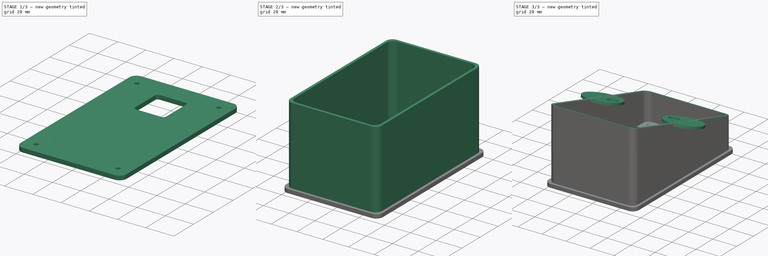
[diagram: build sequence overview — one tinted view per stage of 3, left to right]
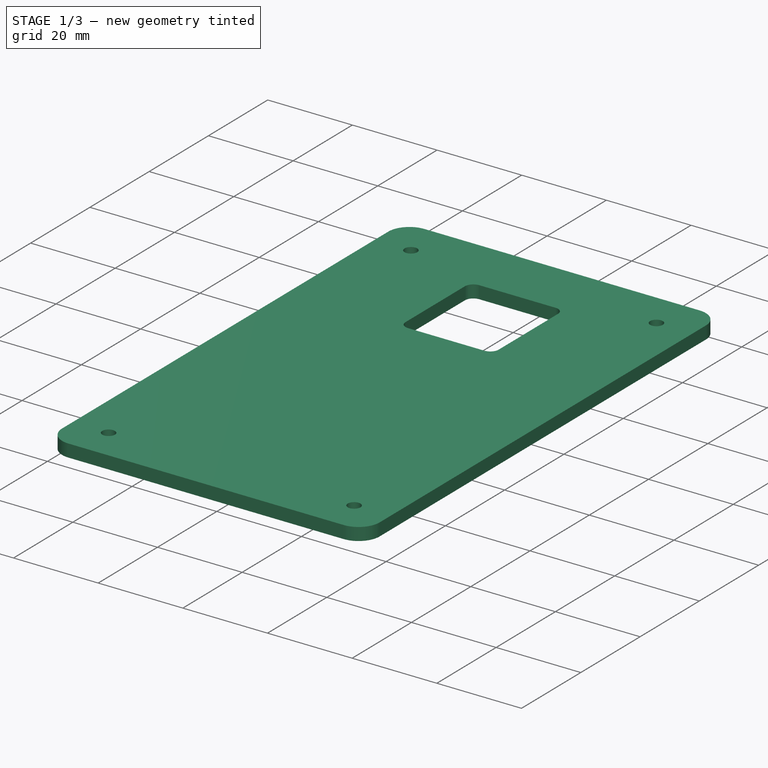
[diagram: stage 1 of 3 — iso view after this stage's code; geometry added in this stage tinted green]
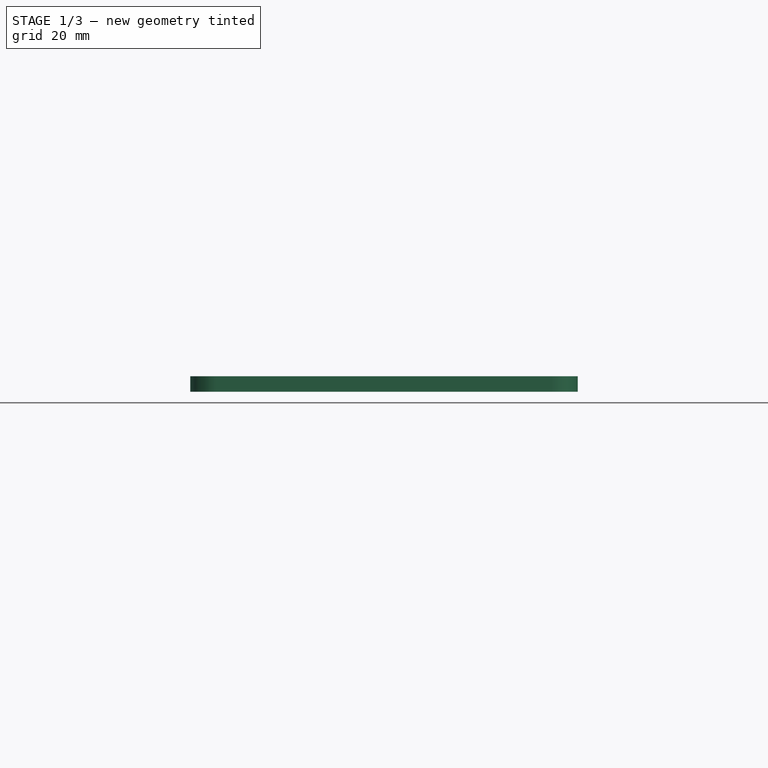
[diagram: stage 1 of 3 — front view after this stage's code; geometry added in this stage tinted green]
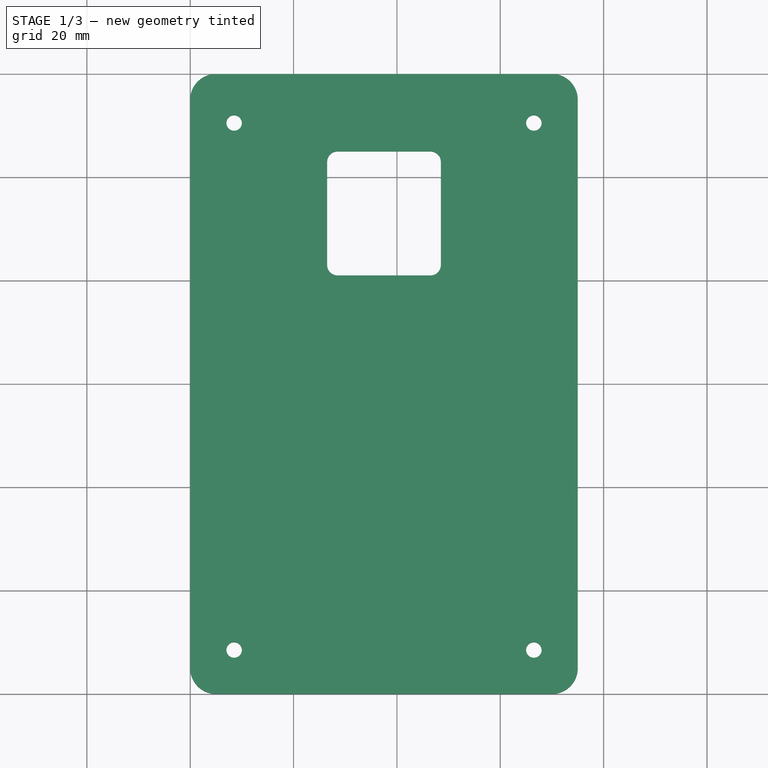
[diagram: stage 1 of 3 — top view after this stage's code; geometry added in this stage tinted green]
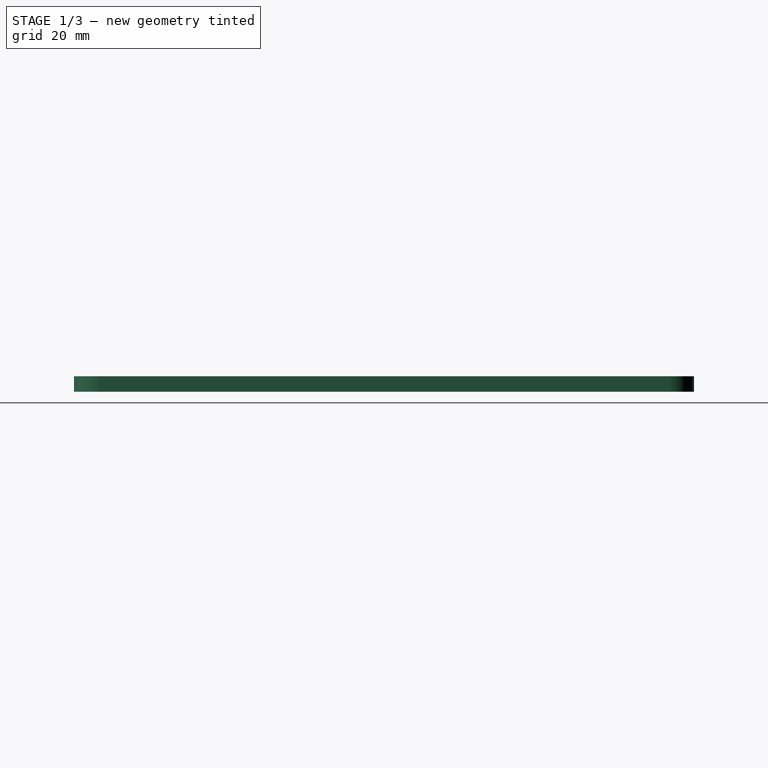
[diagram: stage 1 of 3 — right view after this stage's code; geometry added in this stage tinted green]
FCSTD DOCUMENT  (FreeCAD 0.16R6703 (Git))
Label: terminal1
License: All rights reserved
LicenseURL: http://en.wikipedia.org/wiki/All_rights_reserved
objects: Sketcher::SketchObject×8, PartDesign::Pocket×4, PartDesign::Pad×3
note: 22 computed .brp shape members not serialized (recipe doc carries the construction recipe); baked Part::Feature solids carry a one-line shape summary decoded from their .brp

FEATURE [Sketcher::SketchObject] Sketch
  sketch-geometry (17):
    g0: LineSegment StartX=5 StartY=0 StartZ=0 EndX=70 EndY=0 EndZ=0
    g1: LineSegment StartX=75 StartY=5 StartZ=0 EndX=75 EndY=115 EndZ=0
    g2: LineSegment StartX=70 StartY=120 StartZ=0 EndX=5 EndY=120 EndZ=0
    g3: LineSegment StartX=0 StartY=115 StartZ=0 EndX=0 EndY=5 EndZ=0
    g4: ArcOfCircle CenterX=5 CenterY=115 CenterZ=0 NormalX=0 NormalY=0 NormalZ=1 Radius=5 StartAngle=1.5708 EndAngle=3.14159
    g5: ArcOfCircle CenterX=70 CenterY=115 CenterZ=0 NormalX=0 NormalY=0 NormalZ=1 Radius=5 StartAngle=0 EndAngle=1.5708
    g6: ArcOfCircle CenterX=70 CenterY=5 CenterZ=0 NormalX=0 NormalY=0 NormalZ=1 Radius=5 StartAngle=4.71239 EndAngle=6.28319
    g7: ArcOfCircle CenterX=5 CenterY=5 CenterZ=0 NormalX=0 NormalY=0 NormalZ=1 Radius=5 StartAngle=3.14159 EndAngle=4.71239
    g8: LineSegment StartX=28.5 StartY=105 StartZ=0 EndX=46.5 EndY=105 EndZ=0
    g9: LineSegment StartX=48.5 StartY=103 StartZ=0 EndX=48.5 EndY=83 EndZ=0
    g10: LineSegment StartX=46.5 StartY=81 StartZ=0 EndX=28.5 EndY=81 EndZ=0
    g11: LineSegment StartX=26.5 StartY=83 StartZ=0 EndX=26.5 EndY=103 EndZ=0
    g12: LineSegment [constr] StartX=37.5 StartY=105 StartZ=0 EndX=37.5 EndY=81 EndZ=0
    g13: ArcOfCircle CenterX=28.5 CenterY=103 CenterZ=0 NormalX=0 NormalY=0 NormalZ=1 Radius=2 StartAngle=1.5708 EndAngle=3.14159
    g14: ArcOfCircle CenterX=46.5 CenterY=103 CenterZ=0 NormalX=0 NormalY=0 NormalZ=1 Radius=2 StartAngle=0 EndAngle=1.5708
    g15: ArcOfCircle CenterX=28.5 CenterY=83 CenterZ=0 NormalX=0 NormalY=0 NormalZ=1 Radius=2 StartAngle=3.14159 EndAngle=4.71239
    g16: ArcOfCircle CenterX=46.5 CenterY=83 CenterZ=0 NormalX=0 NormalY=0 NormalZ=1 Radius=2 StartAngle=4.71239 EndAngle=6.28319
  constraints (43):
    c: Horizontal(g0)
    c: Horizontal(g2)
    c: Vertical(g1)
    c: Vertical(g3)
    c: Tangent(g2,g4) = -1.5708
    c: Tangent(g3,g4) = -1.5708
    c: Tangent(g2,g5) = -1.5708
    c: Tangent(g1,g5) = -1.5708
    c: Tangent(g1,g6) = -1.5708
    c: Tangent(g0,g6) = -1.5708
    c: Tangent(g3,g7) = -1.5708
    c: Tangent(g0,g7) = -1.5708
    c: Equal(g7,g4)
    c: Equal(g4,g5)
    c: Equal(g5,g6)
    c: PointOnObject(g3,g-2)
    c: PointOnObject(g0,g-1)
    c: DistanceY(g0,g2) = 120
    c: DistanceX(g3,g1) = 75
    c: Radius(g7) = 5
    c: Horizontal(g8)
    c: Horizontal(g10)
    c: Vertical(g9)
    c: Vertical(g11)
    c: PointOnObject(g12,g8)
    c: PointOnObject(g12,g10)
    c: Tangent(g8,g13) = 1.5708
    c: Tangent(g11,g13) = 1.5708
    c: Tangent(g8,g14) = 1.5708
    c: Tangent(g9,g14) = 1.5708
    c: Tangent(g11,g15) = 1.5708
    c: Tangent(g10,g15) = 1.5708
    c: Tangent(g10,g16) = 1.5708
    c: Tangent(g9,g16) = 1.5708
    c: Equal(g15,g13)
    c: Equal(g13,g14)
    c: Equal(g14,g16)
    c: Radius(g15) = 2
    c: DistanceX(g11,g9) = 22
    c: DistanceY(g10,g8) = 24
    c: Symmetric(g8,g8,g12)
    c: Symmetric(g2,g2,g12)
    c: DistanceY(g12,g2) = 15
FEATURE [PartDesign::Pad] Pad
  Length = 3
  Length2 = 100
  Reversed = true
  Sketch = -> Sketch
  Type = 0
FEATURE [Sketcher::SketchObject] Sketch009
  Placement = pos=(0,0,-3) rot=(1,0,0;3.14159rad)
  Support = -> Pad [Face18]
  sketch-geometry (8):
    g0: LineSegment [constr] StartX=8.5 StartY=-8.5 StartZ=0 EndX=66.5 EndY=-8.5 EndZ=0
    g1: LineSegment [constr] StartX=66.5 StartY=-8.5 StartZ=0 EndX=66.5 EndY=-110.5 EndZ=0
    g2: LineSegment [constr] StartX=66.5 StartY=-110.5 StartZ=0 EndX=8.5 EndY=-110.5 EndZ=0
    g3: LineSegment [constr] StartX=8.5 StartY=-110.5 StartZ=0 EndX=8.5 EndY=-8.5 EndZ=0
    g4: Circle CenterX=66.5 CenterY=-8.5 CenterZ=0 NormalX=0 NormalY=0 NormalZ=1 Radius=1.5
    g5: Circle CenterX=8.5 CenterY=-110.5 CenterZ=0 NormalX=0 NormalY=0 NormalZ=1 Radius=1.5
    g6: Circle CenterX=66.5 CenterY=-110.5 CenterZ=0 NormalX=0 NormalY=0 NormalZ=1 Radius=1.5
    g7: Circle CenterX=8.5 CenterY=-8.5 CenterZ=0 NormalX=0 NormalY=0 NormalZ=1 Radius=1.5
  constraints (20):
    c: Coincident(g0,g1)
    c: Coincident(g1,g2)
    c: Coincident(g2,g3)
    c: Coincident(g3,g0)
    c: Horizontal(g0)
    c: Horizontal(g2)
    c: Vertical(g1)
    c: Vertical(g3)
    c: DistanceX(g-1,g0) = 8.5
    c: Distance(g0) = 58
    c: Distance(g1) = 102
    c: Coincident(g4,g0)
    c: Coincident(g5,g2)
    c: Coincident(g6,g1)
    c: Equal(g5,g6)
    c: Equal(g6,g4)
    c: DistanceY(g0,g-1) = 8.5
    c: Equal(g7,g4)
    c: Coincident(g7,g0)
    c: Radius(g7) = 1.5
FEATURE [PartDesign::Pocket] Pocket003
  Length = 5
  Sketch = -> Sketch009
  Type = 0
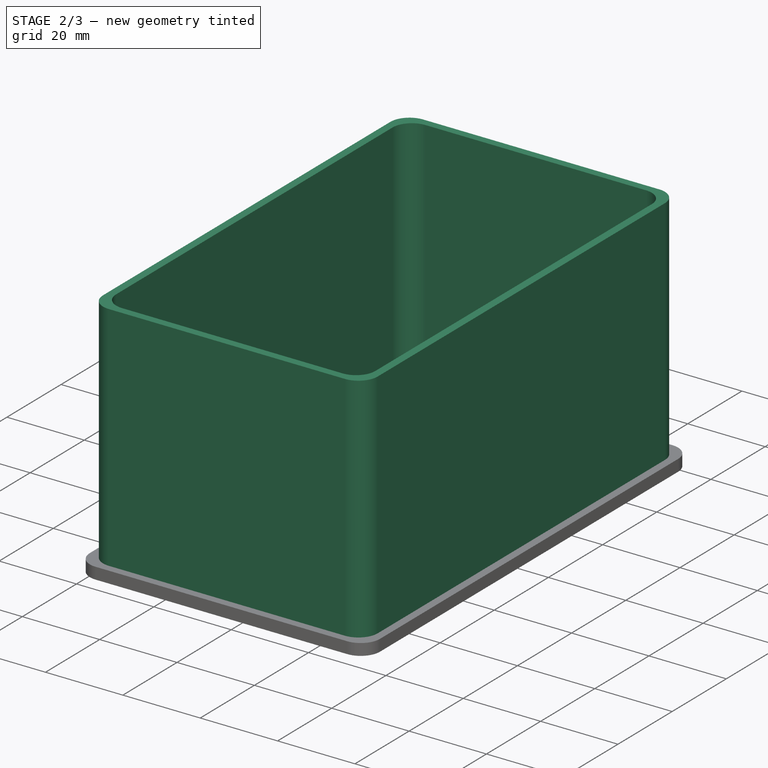
[diagram: stage 2 of 3 — iso view after this stage's code; geometry added in this stage tinted green]
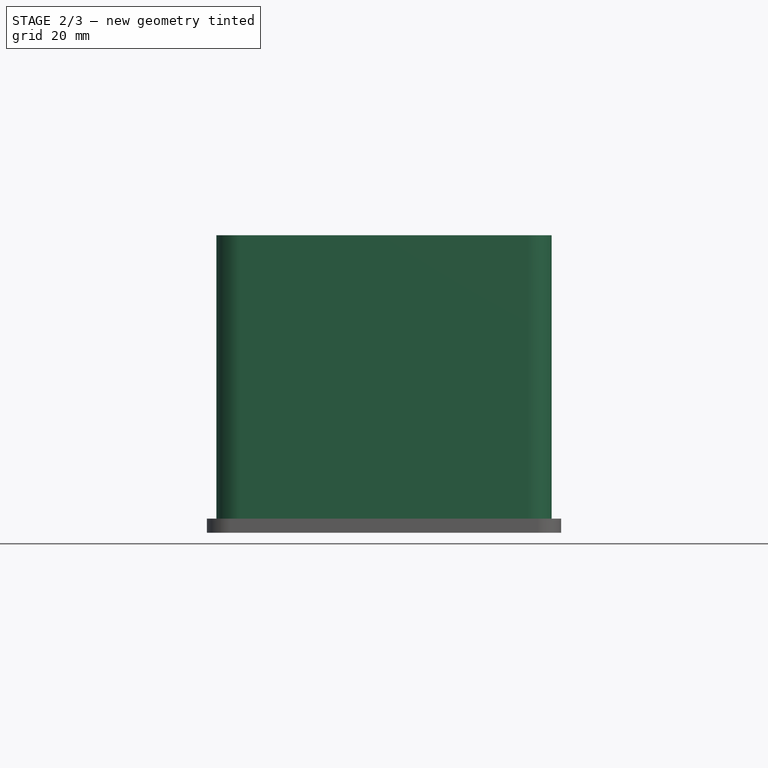
[diagram: stage 2 of 3 — front view after this stage's code; geometry added in this stage tinted green]
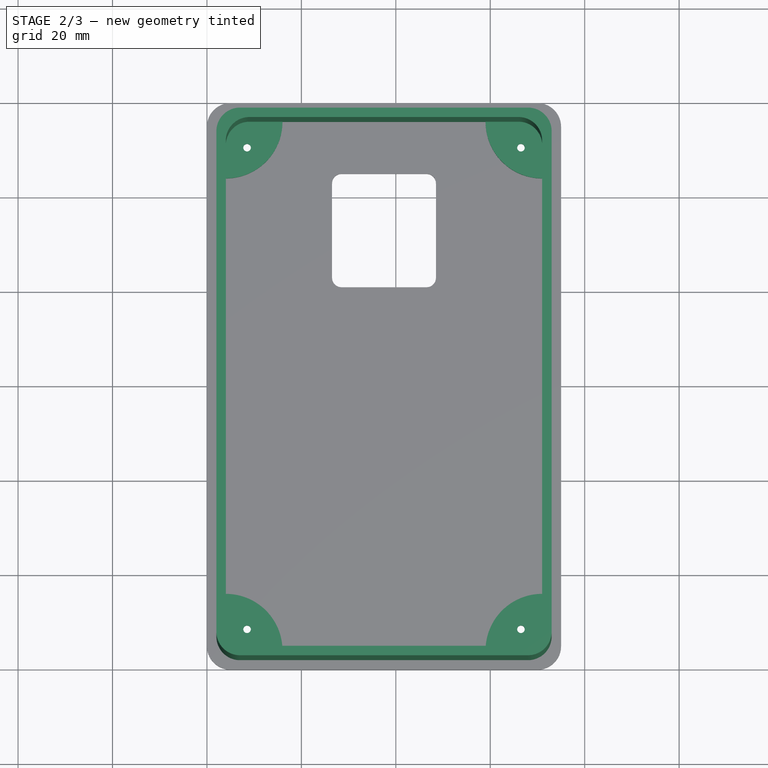
[diagram: stage 2 of 3 — top view after this stage's code; geometry added in this stage tinted green]
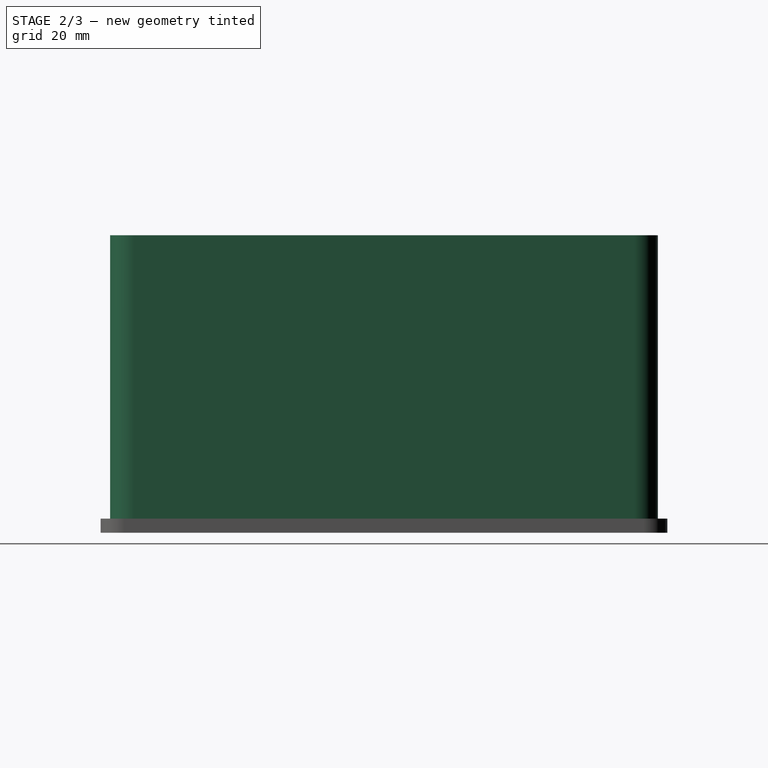
[diagram: stage 2 of 3 — right view after this stage's code; geometry added in this stage tinted green]
FEATURE [Sketcher::SketchObject] Sketch004
  sketch-geometry (26):
    g0: LineSegment StartX=7 StartY=2 StartZ=0 EndX=68 EndY=2 EndZ=0
    g1: LineSegment StartX=73 StartY=7 StartZ=0 EndX=73 EndY=113 EndZ=0
    g2: LineSegment StartX=68 StartY=118 StartZ=0 EndX=7 EndY=118 EndZ=0
    g3: LineSegment StartX=2 StartY=113 StartZ=0 EndX=2 EndY=7 EndZ=0
    g4: ArcOfCircle CenterX=7 CenterY=113 CenterZ=0 NormalX=0 NormalY=0 NormalZ=1 Radius=5 StartAngle=1.5708 EndAngle=3.14159
    g5: ArcOfCircle CenterX=68 CenterY=113 CenterZ=0 NormalX=0 NormalY=0 NormalZ=1 Radius=5 StartAngle=0 EndAngle=1.5708
    g6: ArcOfCircle CenterX=68 CenterY=7 CenterZ=0 NormalX=0 NormalY=0 NormalZ=1 Radius=5 StartAngle=4.71239 EndAngle=6.28319
    g7: ArcOfCircle CenterX=7 CenterY=7 CenterZ=0 NormalX=0 NormalY=0 NormalZ=1 Radius=5 StartAngle=3.14159 EndAngle=4.71239
    g8: LineSegment StartX=16 StartY=4 StartZ=0 EndX=59 EndY=4 EndZ=0
    g9: LineSegment StartX=71 StartY=16 StartZ=0 EndX=71 EndY=104 EndZ=0
    g10: LineSegment StartX=59 StartY=116 StartZ=0 EndX=16 EndY=116 EndZ=0
    g11: LineSegment StartX=4 StartY=104 StartZ=0 EndX=4 EndY=16 EndZ=0
    g12: LineSegment [constr] StartX=37.5 StartY=118 StartZ=0 EndX=37.5 EndY=2 EndZ=0
    g13: LineSegment [constr] StartX=2 StartY=60 StartZ=0 EndX=73 EndY=60 EndZ=0
    g14: LineSegment [constr] StartX=4 StartY=104 StartZ=0 EndX=4 EndY=116 EndZ=0
    g15: LineSegment [constr] StartX=4 StartY=116 StartZ=0 EndX=16 EndY=116 EndZ=0
    g16: LineSegment [constr] StartX=59 StartY=116 StartZ=0 EndX=71 EndY=116 EndZ=0
    g17: LineSegment [constr] StartX=71 StartY=116 StartZ=0 EndX=71 EndY=104 EndZ=0
    g18: LineSegment [constr] StartX=59 StartY=4 StartZ=0 EndX=71 EndY=4 EndZ=0
    g19: LineSegment [constr] StartX=71 StartY=4 StartZ=0 EndX=71 EndY=16 EndZ=0
    g20: LineSegment [constr] StartX=4 StartY=16 StartZ=0 EndX=4 EndY=4 EndZ=0
    g21: LineSegment [constr] StartX=4 StartY=4 StartZ=0 EndX=16 EndY=4 EndZ=0
    g22: ArcOfCircle CenterX=4 CenterY=4 CenterZ=0 NormalX=0 NormalY=0 NormalZ=1 Radius=12 StartAngle=0 EndAngle=1.5708
    g23: ArcOfCircle CenterX=71 CenterY=4 CenterZ=0 NormalX=0 NormalY=0 NormalZ=1 Radius=12 StartAngle=1.5708 EndAngle=3.14159
    g24: ArcOfCircle CenterX=4 CenterY=116 CenterZ=0 NormalX=0 NormalY=0 NormalZ=1 Radius=12 StartAngle=4.71239 EndAngle=6.28319
    g25: ArcOfCircle CenterX=71 CenterY=116 CenterZ=0 NormalX=0 NormalY=0 NormalZ=1 Radius=12 StartAngle=3.14159 EndAngle=4.71239
  constraints (72):
    c: Horizontal(g0)
    c: Horizontal(g2)
    c: Vertical(g1)
    c: Vertical(g3)
    c: Tangent(g2,g4) = -1.5708
    c: Tangent(g3,g4) = -1.5708
    c: Tangent(g2,g5) = -1.5708
    c: Tangent(g1,g5) = -1.5708
    c: Tangent(g1,g6) = -1.5708
    c: Tangent(g0,g6) = -1.5708
    c: Tangent(g3,g7) = -1.5708
    c: Tangent(g0,g7) = -1.5708
    c: Equal(g7,g4)
    c: Equal(g4,g5)
    c: Equal(g5,g6)
    c: DistanceY(g0,g2) = 116
    c: DistanceX(g3,g1) = 71
    c: Radius(g7) = 5
    c: DistanceY(g-1,g0) = 2
    c: DistanceX(g-1,g3) = 2
    c: Horizontal(g8)
    c: Horizontal(g10)
    c: Vertical(g9)
    c: Vertical(g11)
    c: DistanceY(g8,g10) = 112
    c: DistanceX(g11,g9) = 67
    c: PointOnObject(g12,g2)
    c: PointOnObject(g12,g0)
    c: Symmetric(g2,g2,g12)
    c: Symmetric(g10,g10,g12)
    c: PointOnObject(g13,g3)
    c: PointOnObject(g13,g1)
    c: Symmetric(g1,g1,g13)
    c: Symmetric(g9,g9,g13)
    c: Coincident(g11,g14)
    c: Vertical(g14)
    c: Coincident(g14,g15)
    c: Coincident(g15,g10)
    c: Horizontal(g15)
    c: Coincident(g10,g16)
    c: Horizontal(g16)
    c: Coincident(g16,g17)
    c: Coincident(g17,g9)
    c: Vertical(g17)
    c: Coincident(g8,g18)
    c: Horizontal(g18)
    c: Coincident(g18,g19)
    c: Coincident(g19,g9)
    c: Vertical(g19)
    c: Coincident(g11,g20)
    c: Vertical(g20)
    c: Coincident(g20,g21)
    c: Coincident(g21,g8)
    c: Horizontal(g21)
    c: Coincident(g22,g20)
    c: Coincident(g22,g11)
    c: Coincident(g22,g8)
    c: Symmetric(g11,g9,g12)
    c: Equal(g21,g20)
    c: Symmetric(g8,g10,g13)
    c: Equal(g19,g18)
    c: Equal(g14,g15)
    c: Radius(g22) = 12
    c: Coincident(g23,g18)
    c: Coincident(g23,g8)
    c: Coincident(g23,g9)
    c: Coincident(g24,g14)
    c: Coincident(g24,g10)
    c: Coincident(g24,g11)
    c: Coincident(g25,g16)
    c: Coincident(g25,g10)
    c: Coincident(g25,g9)
FEATURE [PartDesign::Pad] Pad001
  Length = 60
  Length2 = 100
  Sketch = -> Sketch004
  Type = 0
FEATURE [Sketcher::SketchObject] Sketch003
  Placement = pos=(0,0,60) rot=(0,0,1;0rad)
  Support = -> Pad001 [Face18]
  sketch-geometry (10):
    g0: LineSegment StartX=9 StartY=4 StartZ=0 EndX=66 EndY=4 EndZ=0
    g1: LineSegment StartX=71 StartY=9 StartZ=0 EndX=71 EndY=111 EndZ=0
    g2: LineSegment StartX=66 StartY=116 StartZ=0 EndX=9 EndY=116 EndZ=0
    g3: LineSegment StartX=4 StartY=111 StartZ=0 EndX=4 EndY=9 EndZ=0
    g4: ArcOfCircle CenterX=9 CenterY=111 CenterZ=0 NormalX=0 NormalY=0 NormalZ=1 Radius=5 StartAngle=1.5708 EndAngle=3.14159
    g5: ArcOfCircle CenterX=66 CenterY=111 CenterZ=0 NormalX=0 NormalY=0 NormalZ=1 Radius=5 StartAngle=0 EndAngle=1.5708
    g6: ArcOfCircle CenterX=66 CenterY=9 CenterZ=0 NormalX=0 NormalY=0 NormalZ=1 Radius=5 StartAngle=4.71239 EndAngle=6.28319
    g7: ArcOfCircle CenterX=9 CenterY=9 CenterZ=0 NormalX=0 NormalY=0 NormalZ=1 Radius=5 StartAngle=3.14159 EndAngle=4.71239
    g8: LineSegment [constr] StartX=37.5 StartY=116 StartZ=0 EndX=37.5 EndY=4 EndZ=0
    g9: LineSegment [constr] StartX=4 StartY=60 StartZ=0 EndX=71 EndY=60 EndZ=0
  constraints (26):
    c: Horizontal(g0)
    c: Horizontal(g2)
    c: Vertical(g1)
    c: Vertical(g3)
    c: Tangent(g2,g4) = -1.5708
    c: Tangent(g3,g4) = -1.5708
    c: Tangent(g2,g5) = -1.5708
    c: Tangent(g1,g5) = -1.5708
    c: Tangent(g1,g6) = -1.5708
    c: Tangent(g0,g6) = -1.5708
    c: Tangent(g3,g7) = -1.5708
    c: Tangent(g0,g7) = -1.5708
    c: Equal(g5,g6)
    c: DistanceY(g0,g2) = 112
    c: DistanceX(g3,g1) = 67
    c: Symmetric(g2,g2,g8)
    c: Symmetric(g1,g1,g9)
    c: PointOnObject(g9,g3)
    c: PointOnObject(g9,g1)
    c: PointOnObject(g8,g2)
    c: PointOnObject(g8,g0)
    c: DistanceY(g-1,g0) = 4
    c: DistanceX(g-1,g3) = 4
    c: Radius(g7) = 5
    c: Equal(g7,g4)
    c: Equal(g4,g5)
FEATURE [PartDesign::Pocket] Pocket
  Length = 57
  Sketch = -> Sketch003
  Type = 0
  expr: Length = Pad001.Length - 3mm
FEATURE [Sketcher::SketchObject] Sketch006
  Placement = pos=(0,0,3) rot=(0,0,1;0rad)
  Support = -> Pocket [Face37]
  sketch-geometry (8):
    g0: LineSegment [constr] StartX=8.5 StartY=110.5 StartZ=0 EndX=66.5 EndY=110.5 EndZ=0
    g1: LineSegment [constr] StartX=66.5 StartY=110.5 StartZ=0 EndX=66.5 EndY=8.5 EndZ=0
    g2: LineSegment [constr] StartX=66.5 StartY=8.5 StartZ=0 EndX=8.5 EndY=8.5 EndZ=0
    g3: LineSegment [constr] StartX=8.5 StartY=8.5 StartZ=0 EndX=8.5 EndY=110.5 EndZ=0
    g4: Circle CenterX=8.5 CenterY=110.5 CenterZ=0 NormalX=0 NormalY=0 NormalZ=1 Radius=0.8
    g5: Circle CenterX=66.5 CenterY=110.5 CenterZ=0 NormalX=0 NormalY=0 NormalZ=1 Radius=0.8
    g6: Circle CenterX=8.5 CenterY=8.5 CenterZ=0 NormalX=0 NormalY=0 NormalZ=1 Radius=0.8
    g7: Circle CenterX=66.5 CenterY=8.5 CenterZ=0 NormalX=0 NormalY=0 NormalZ=1 Radius=0.8
  constraints (20):
    c: Coincident(g0,g1)
    c: Coincident(g1,g2)
    c: Coincident(g2,g3)
    c: Coincident(g3,g0)
    c: Horizontal(g0)
    c: Horizontal(g2)
    c: Vertical(g1)
    c: Vertical(g3)
    c: DistanceX(g-1,g0) = 8.5
    c: Distance(g0) = 58
    c: Distance(g1) = 102
    c: DistanceY(g-1,g2) = 8.5
    c: Coincident(g5,g0)
    c: Coincident(g6,g2)
    c: Coincident(g7,g1)
    c: Equal(g6,g7)
    c: Equal(g7,g5)
    c: Equal(g5,g4)
    c: Radius(g4) = 0.8
    c: Coincident(g4,g0)
FEATURE [PartDesign::Pocket] Pocket001
  Length = 5
  Sketch = -> Sketch006
  Type = 1
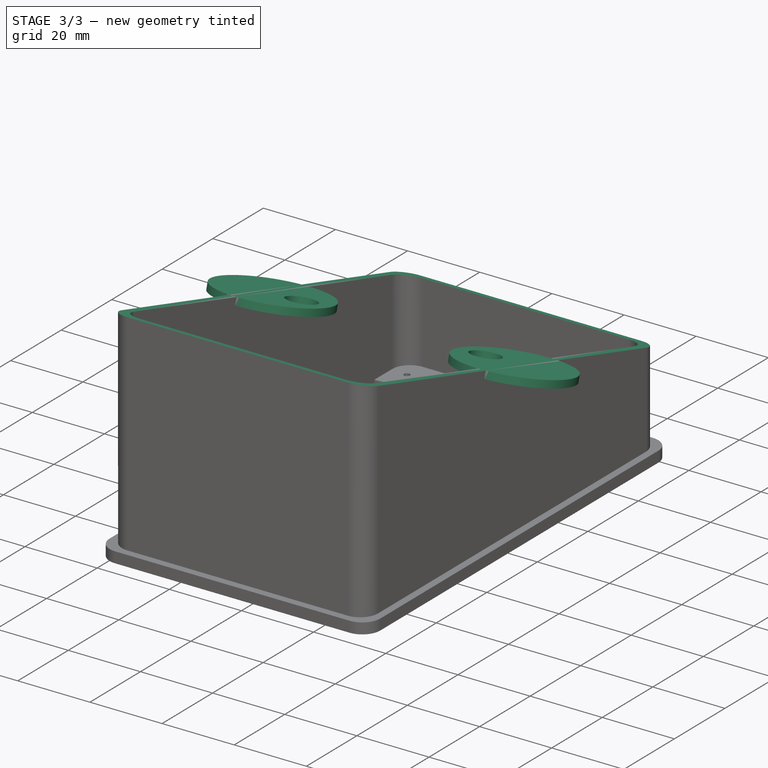
[diagram: stage 3 of 3 — iso view after this stage's code; geometry added in this stage tinted green]
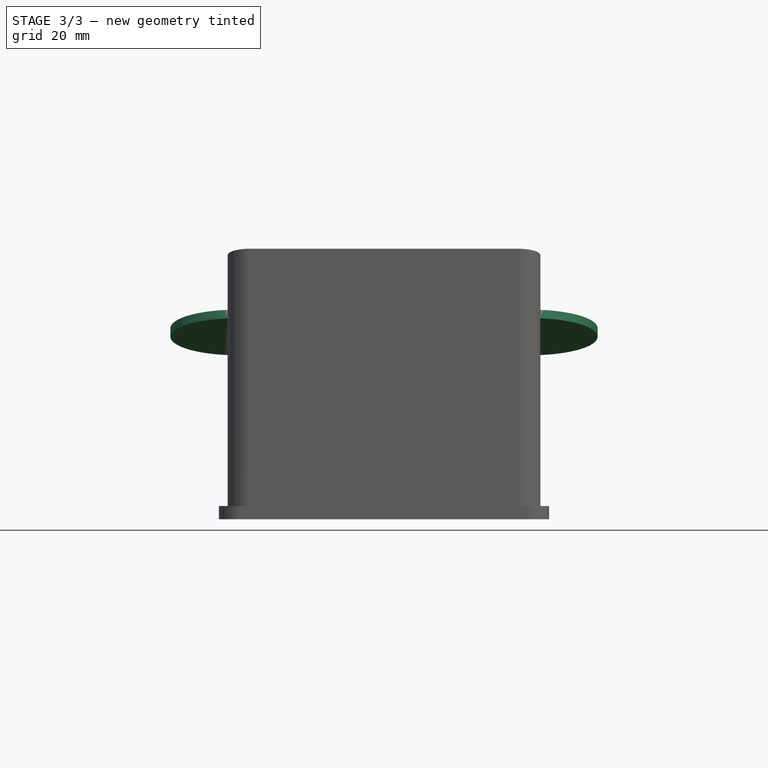
[diagram: stage 3 of 3 — front view after this stage's code; geometry added in this stage tinted green]
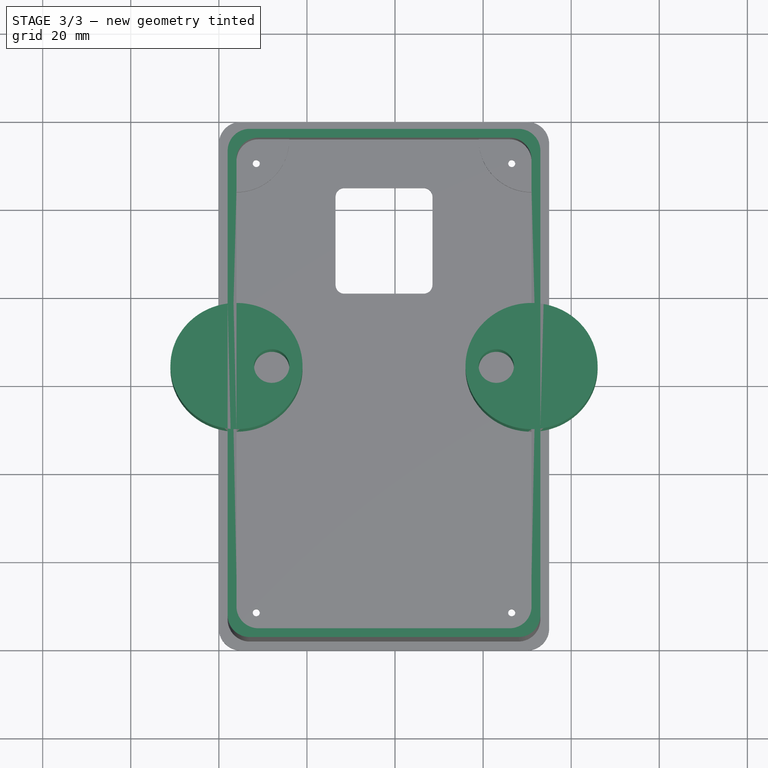
[diagram: stage 3 of 3 — top view after this stage's code; geometry added in this stage tinted green]
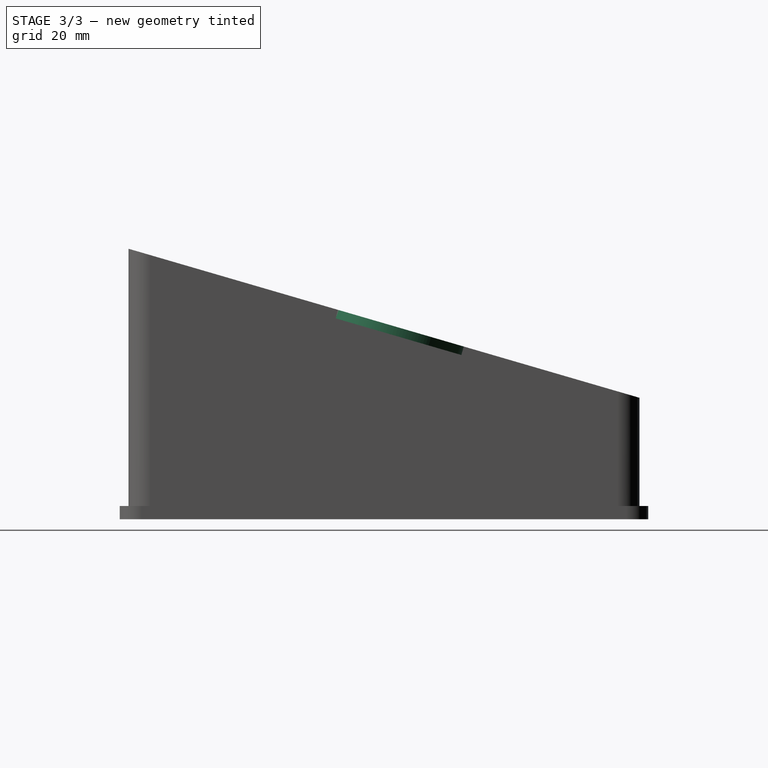
[diagram: stage 3 of 3 — right view after this stage's code; geometry added in this stage tinted green]
FEATURE [Sketcher::SketchObject] Sketch005
  Placement = pos=(73,0,0) rot=(0.57735,0.57735,0.57735;2.0944rad)
  Support = -> Pocket001 [Face7]
  expr: Constraints[14] = Pad001.Length - 1mm
  sketch-geometry (5):
    g0: LineSegment StartX=202.286 StartY=0 StartZ=0 EndX=0 EndY=59 EndZ=0
    g1: LineSegment StartX=0 StartY=59 StartZ=0 EndX=0 EndY=90.06 EndZ=0
    g2: LineSegment StartX=0 StartY=90.06 StartZ=0 EndX=202.286 EndY=90.06 EndZ=0
    g3: LineSegment StartX=202.286 StartY=90.06 StartZ=0 EndX=202.286 EndY=0 EndZ=0
    g4: LineSegment [constr] StartX=120 StartY=24 StartZ=0 EndX=120 EndY=0 EndZ=0
  constraints (16):
    c: PointOnObject(g0,g-1)
    c: PointOnObject(g0,g-2)
    c: Coincident(g0,g1)
    c: PointOnObject(g1,g-2)
    c: Coincident(g1,g2)
    c: Horizontal(g2)
    c: Coincident(g2,g3)
    c: Coincident(g3,g0)
    c: Vertical(g3)
    c: PointOnObject(g4,g0)
    c: Vertical(g4)
    c: DistanceY(g4,g4) = 24
    c: PointOnObject(g4,g-1)
    c: DistanceX(g0,g4) = 120
    c: DistanceY(g-1,g0) = 59
    c: DistanceY(g3,g3) = 90.06
FEATURE [PartDesign::Pocket] Pocket002
  Length = 5
  Sketch = -> Sketch005
  Type = 1
FEATURE [Sketcher::SketchObject] Sketch007
  sketch-geometry (18):
    g0: LineSegment StartX=7 StartY=2 StartZ=0 EndX=68 EndY=2 EndZ=0
    g1: LineSegment StartX=73 StartY=7 StartZ=0 EndX=73 EndY=113 EndZ=0
    g2: LineSegment StartX=68 StartY=118 StartZ=0 EndX=7 EndY=118 EndZ=0
    g3: LineSegment StartX=2 StartY=113 StartZ=0 EndX=2 EndY=7 EndZ=0
    g4: ArcOfCircle CenterX=7 CenterY=113 CenterZ=0 NormalX=0 NormalY=0 NormalZ=1 Radius=5 StartAngle=1.5708 EndAngle=3.14159
    g5: ArcOfCircle CenterX=68 CenterY=113 CenterZ=0 NormalX=0 NormalY=0 NormalZ=1 Radius=5 StartAngle=0 EndAngle=1.5708
    g6: ArcOfCircle CenterX=68 CenterY=7 CenterZ=0 NormalX=0 NormalY=0 NormalZ=1 Radius=5 StartAngle=4.71239 EndAngle=6.28319
    g7: ArcOfCircle CenterX=7 CenterY=7 CenterZ=0 NormalX=0 NormalY=0 NormalZ=1 Radius=5 StartAngle=3.14159 EndAngle=4.71239
    g8: LineSegment StartX=9.00042 StartY=4 StartZ=0 EndX=66 EndY=4 EndZ=0
    g9: LineSegment StartX=71 StartY=9 StartZ=0 EndX=71 EndY=111 EndZ=0
    g10: LineSegment StartX=65.9996 StartY=116 StartZ=0 EndX=9.00042 EndY=116 EndZ=0
    g11: LineSegment StartX=4 StartY=111 StartZ=0 EndX=4 EndY=9 EndZ=0
    g12: LineSegment [constr] StartX=37.5 StartY=118 StartZ=0 EndX=37.5 EndY=2 EndZ=0
    g13: LineSegment [constr] StartX=2 StartY=60 StartZ=0 EndX=73 EndY=60 EndZ=0
    g14: ArcOfCircle CenterX=9 CenterY=111 CenterZ=0 NormalX=0 NormalY=0 NormalZ=1 Radius=5 StartAngle=1.57071 EndAngle=3.14151
    g15: ArcOfCircle CenterX=66 CenterY=111 CenterZ=0 NormalX=0 NormalY=0 NormalZ=1 Radius=5 StartAngle=6.28319 EndAngle=7.85407
    g16: ArcOfCircle CenterX=66 CenterY=9 CenterZ=0 NormalX=0 NormalY=0 NormalZ=1 Radius=5 StartAngle=4.71239 EndAngle=6.28319
    g17: ArcOfCircle CenterX=9 CenterY=9 CenterZ=0 NormalX=0 NormalY=0 NormalZ=1 Radius=5 StartAngle=3.14159 EndAngle=4.71247
  constraints (52):
    c: Horizontal(g0)
    c: Horizontal(g2)
    c: Vertical(g1)
    c: Vertical(g3)
    c: Tangent(g2,g4) = -1.5708
    c: Tangent(g3,g4) = -1.5708
    c: Tangent(g2,g5) = -1.5708
    c: Tangent(g1,g5) = -1.5708
    c: Tangent(g1,g6) = -1.5708
    c: Tangent(g0,g6) = -1.5708
    c: Tangent(g3,g7) = -1.5708
    c: Tangent(g0,g7) = -1.5708
    c: Equal(g7,g4)
    c: Equal(g4,g5)
    c: Equal(g5,g6)
    c: DistanceY(g0,g2) = 116
    c: DistanceX(g3,g1) = 71
    c: Radius(g7) = 5
    c: DistanceY(g-1,g0) = 2
    c: DistanceX(g-1,g3) = 2
    c: Horizontal(g8)
    c: Horizontal(g10)
    c: Vertical(g9)
    c: Vertical(g11)
    c: DistanceY(g8,g10) = 112
    c: DistanceX(g11,g9) = 67
    c: PointOnObject(g12,g2)
    c: PointOnObject(g12,g0)
    c: Symmetric(g2,g2,g12)
    c: Symmetric(g10,g10,g12)
    c: PointOnObject(g13,g3)
    c: PointOnObject(g13,g1)
    c: Symmetric(g1,g1,g13)
    c: Symmetric(g9,g9,g13)
    c: Symmetric(g11,g9,g12)
    c: Symmetric(g8,g10,g13)
    c: Coincident(g14,g10)
    c: Coincident(g14,g11)
    c: Coincident(g15,g10)
    c: Coincident(g15,g9)
    c: Coincident(g16,g8)
    c: Coincident(g16,g9)
    c: Coincident(g17,g11)
    c: Coincident(g17,g8)
    c: Equal(g17,g16)
    c: Equal(g16,g15)
    c: Equal(g15,g14)
    c: Radius(g14) = 5
    c: Tangent(g9,g15)
    c: Tangent(g16,g8)
    c: Tangent(g11,g17)
    c: Angle(g14) = 1.5708
FEATURE [Sketcher::SketchObject] Sketch008
  ExternalGeometry = -> [Pocket002]
  Placement = pos=(0,15.8592,54.3744) rot=(-1,0,0;0.283794rad)
  Support = -> Pocket002 [Face4]
  sketch-geometry (9):
    g0: Circle CenterX=4 CenterY=50 CenterZ=0 NormalX=0 NormalY=0 NormalZ=1 Radius=15
    g1: Circle CenterX=71 CenterY=50 CenterZ=0 NormalX=0 NormalY=0 NormalZ=1 Radius=15
    g2: LineSegment [constr] StartX=4 StartY=50 StartZ=0 EndX=12 EndY=50 EndZ=0
    g3: LineSegment [constr] StartX=12 StartY=50 StartZ=0 EndX=63 EndY=50 EndZ=0
    g4: LineSegment [constr] StartX=63 StartY=50 StartZ=0 EndX=71 EndY=50 EndZ=0
    g5: Circle CenterX=12 CenterY=50 CenterZ=0 NormalX=0 NormalY=0 NormalZ=1 Radius=4
    g6: Circle CenterX=63 CenterY=50 CenterZ=0 NormalX=0 NormalY=0 NormalZ=1 Radius=4
    g7: LineSegment [constr] StartX=4 StartY=50 StartZ=0 EndX=-4 EndY=50 EndZ=0
    g8: LineSegment [constr] StartX=71 StartY=50 StartZ=0 EndX=79 EndY=50 EndZ=0
  constraints (24):
    c: PointOnObject(g1,g-4)
    c: PointOnObject(g0,g-3)
    c: Radius(g0) = 15
    c: Equal(g0,g1)
    c: DistanceY(g-1,g0) = 50
    c: Coincident(g2,g0)
    c: Horizontal(g2)
    c: Coincident(g2,g3)
    c: Horizontal(g3)
    c: Coincident(g3,g4)
    c: Coincident(g4,g1)
    c: Horizontal(g4)
    c: Equal(g2,g4)
    c: Distance(g2) = 8
    c: Coincident(g5,g2)
    c: Coincident(g6,g3)
    c: Equal(g5,g6)
    c: Radius(g6) = 4
    c: Horizontal(g7)
    c: Coincident(g8,g1)
    c: Horizontal(g8)
    c: Coincident(g7,g0)
    c: Equal(g7,g8)
    c: Distance(g8) = 8
FEATURE [PartDesign::Pad] Pad002
  Length = 2
  Length2 = 100
  Reversed = true
  Sketch = -> Sketch008
  Type = 0
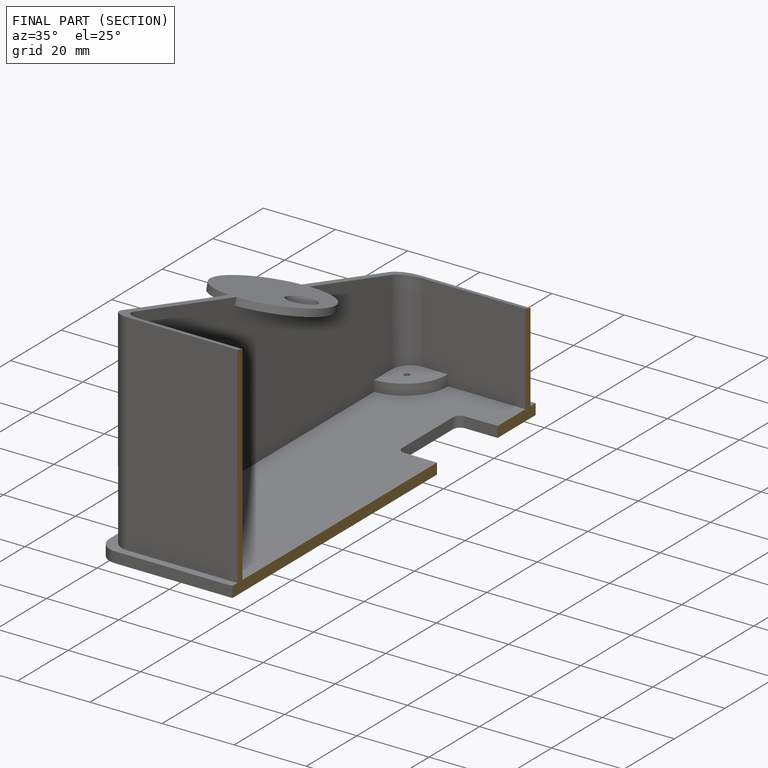
[diagram: finished part — half-section view (interior)]
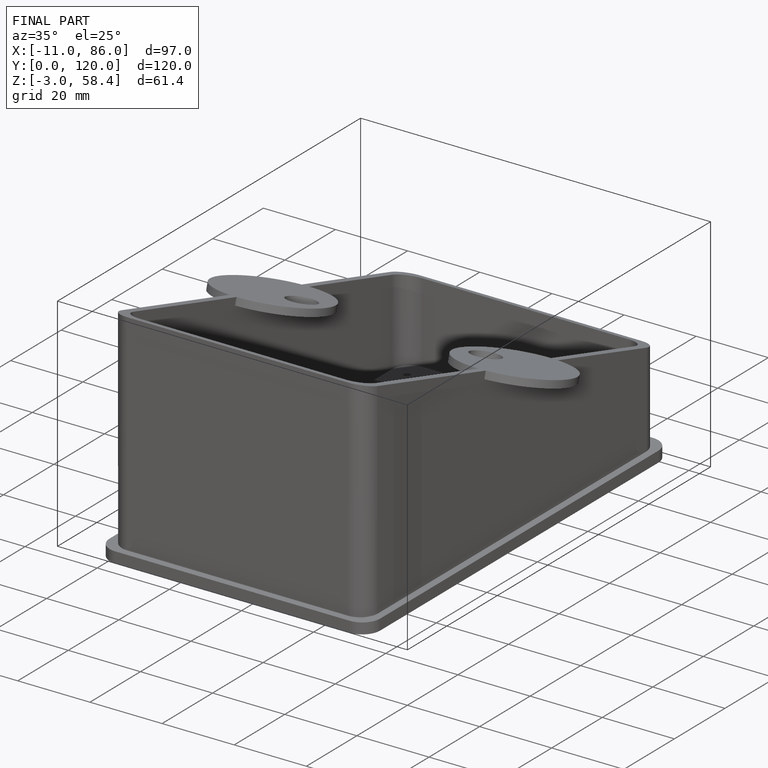
[diagram: finished part — iso view with bounding-box wireframe]
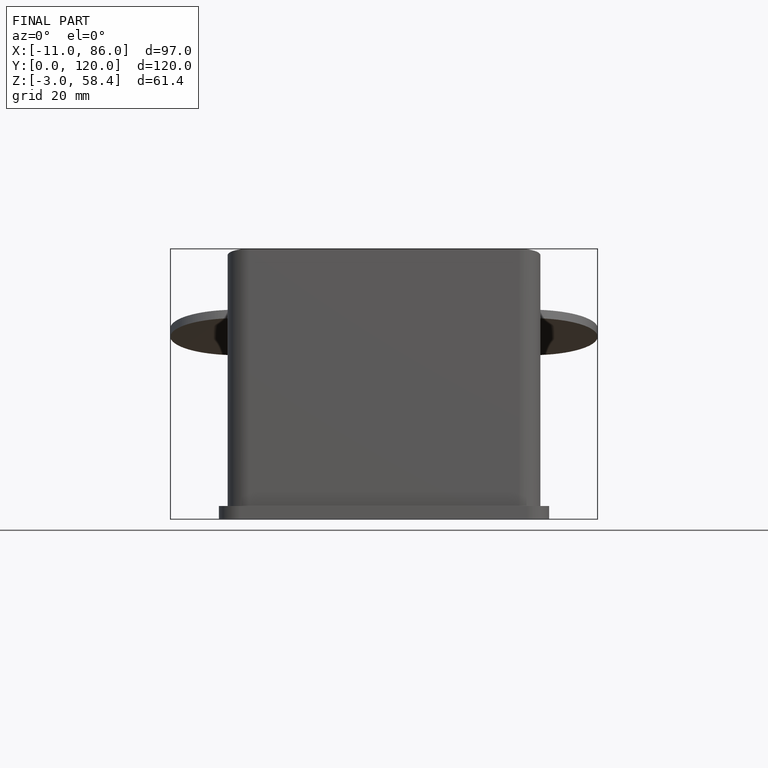
[diagram: finished part — front view with bounding-box wireframe]
